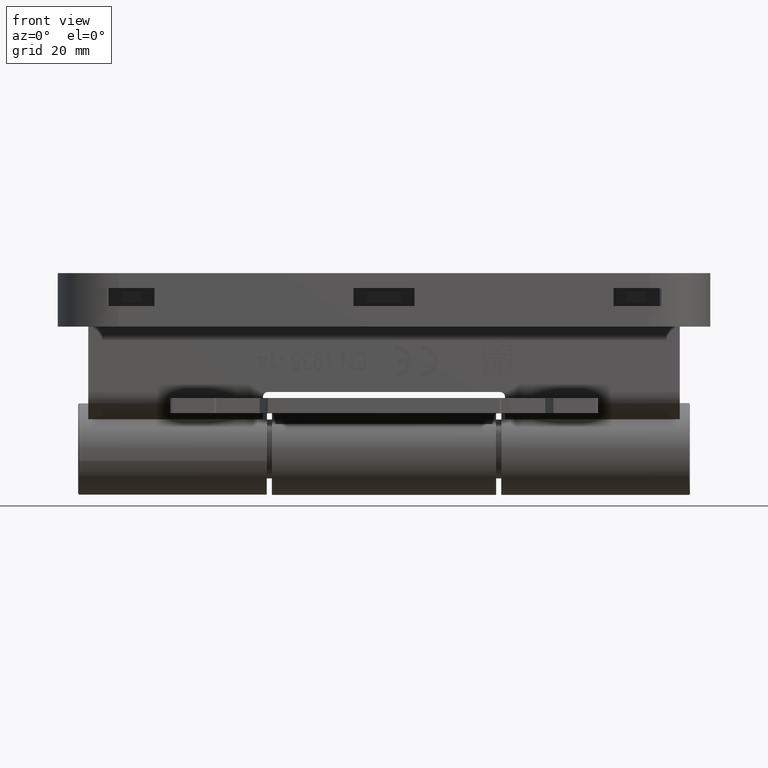
[diagram: clean part render]
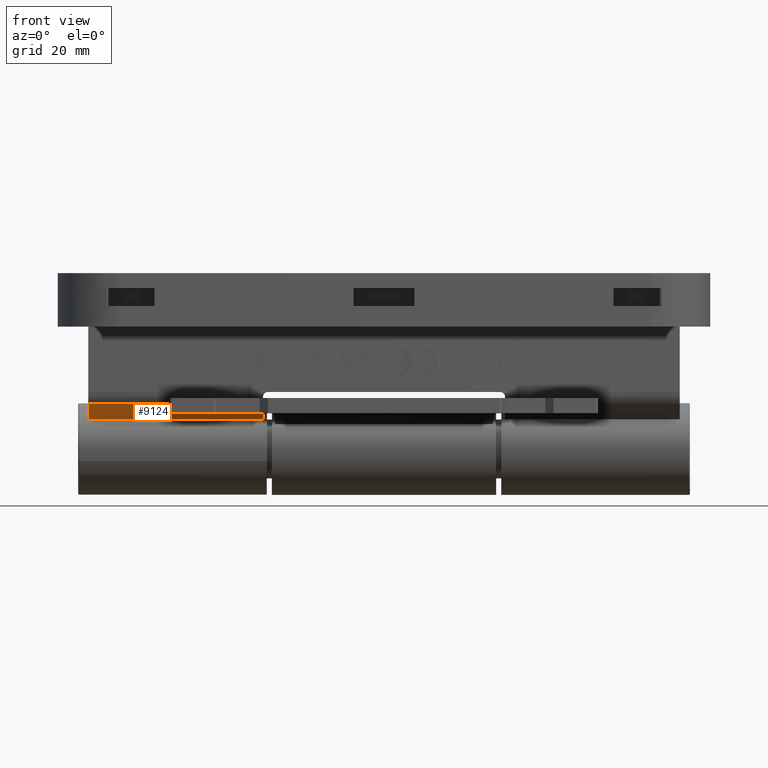
[diagram: same view with one face highlighted and labeled with its STEP entity id]
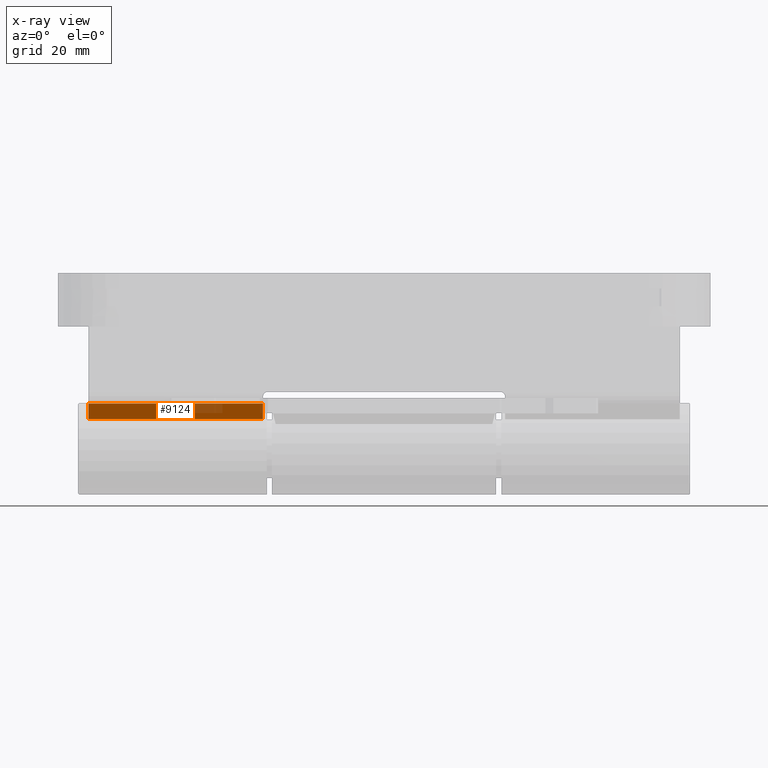
[diagram: x-ray of the same camera — body ghosted, the highlighted face saturated]
A machine part, front view. The second image highlights one B-rep face of the part: STEP entity #9124.
The next image is the same camera in x-ray: the body ghosted, the highlighted face saturated — about 19% of this face is hidden behind the body in this view.
In plain terms, the highlighted planar face has unit normal (0, 0.7575, 0.6528).
Its self-contained STEP definition (entity closure, byte-faithful):
#509 = VERTEX_POINT ( 'NONE', #15197 ) ;
#1026 = EDGE_LOOP ( 'NONE', ( #24645, #42926, #46314, #42566 ) ) ;
#2307 = LINE ( 'NONE', #34028, #2556 ) ;
#2556 = VECTOR ( 'NONE', #34277, 1000.000000000000000 ) ;
#9124 = ADVANCED_FACE ( 'NONE', ( #9517 ), #44605, .F. ) ;
#9517 = FACE_OUTER_BOUND ( 'NONE', #1026, .T. ) ;
#9781 = CARTESIAN_POINT ( 'NONE',  ( -27.72750935782417869, 63.99999999999997158, 25.45851634693802978 ) ) ;
#9970 = AXIS2_PLACEMENT_3D ( 'NONE', #9781, #20436, #28761 ) ;
#11502 = CARTESIAN_POINT ( 'NONE',  ( -30.48820563809798401, 57.99999999999997868, 28.66178624694167354 ) ) ;
#13612 = CARTESIAN_POINT ( 'NONE',  ( -27.84876091746155424, 57.99999999999997868, 25.59920602515079224 ) ) ;
#15058 = LINE ( 'NONE', #26505, #45182 ) ;
#15197 = CARTESIAN_POINT ( 'NONE',  ( -27.84876091746157556, 23.74999999999997868, 25.59920602515079224 ) ) ;
#20436 = DIRECTION ( 'NONE',  ( -0.7574968807252608904, -5.045942868377556070E-16, -0.6528387823126776679 ) ) ;
#21544 = LINE ( 'NONE', #32721, #37565 ) ;
#21868 = LINE ( 'NONE', #39184, #39311 ) ;
#22690 = EDGE_CURVE ( 'NONE', #29648, #42429, #21544, .T. ) ;
#24066 = EDGE_CURVE ( 'NONE', #509, #42429, #21868, .T. ) ;
#24645 = ORIENTED_EDGE ( 'NONE', *, *, #38192, .F. ) ;
#26505 = CARTESIAN_POINT ( 'NONE',  ( -27.72750935782419290, 57.99999999999997868, 25.45851634693803334 ) ) ;
#27009 = DIRECTION ( 'NONE',  ( -0.6528387823126776679, 6.119432418768942011E-16, 0.7574968807252608904 ) ) ;
#28761 = DIRECTION ( 'NONE',  ( -0.6528387823126776679, -4.348779884950725436E-16, 0.7574968807252608904 ) ) ;
#29079 = VERTEX_POINT ( 'NONE', #13612 ) ;
#29648 = VERTEX_POINT ( 'NONE', #11502 ) ;
#30999 = CARTESIAN_POINT ( 'NONE',  ( -30.48820563809800532, 23.74999999999997513, 28.66178624694167354 ) ) ;
#32721 = CARTESIAN_POINT ( 'NONE',  ( -30.48820563809796269, 63.99999999999995737, 28.66178624694167354 ) ) ;
#34028 = CARTESIAN_POINT ( 'NONE',  ( -27.84876091746154714, 63.99999999999997158, 25.59920602515079224 ) ) ;
#34277 = DIRECTION ( 'NONE',  ( -6.661338147750984602E-16, -1.000000000000000000, -1.295404630198729585E-30 ) ) ;
#37565 = VECTOR ( 'NONE', #45435, 1000.000000000000000 ) ;
#37708 = DIRECTION ( 'NONE',  ( -0.6528387823126776679, -4.348779884950725436E-16, 0.7574968807252608904 ) ) ;
#38192 = EDGE_CURVE ( 'NONE', #29079, #509, #2307, .T. ) ;
#39184 = CARTESIAN_POINT ( 'NONE',  ( -27.72750935782420711, 23.74999999999997868, 25.45851634693802978 ) ) ;
#39311 = VECTOR ( 'NONE', #37708, 1000.000000000000000 ) ;
#42429 = VERTEX_POINT ( 'NONE', #30999 ) ;
#42566 = ORIENTED_EDGE ( 'NONE', *, *, #24066, .F. ) ;
#42926 = ORIENTED_EDGE ( 'NONE', *, *, #45028, .T. ) ;
#44605 = PLANE ( 'NONE',  #9970 ) ;
#45028 = EDGE_CURVE ( 'NONE', #29079, #29648, #15058, .T. ) ;
#45182 = VECTOR ( 'NONE', #27009, 1000.000000000000000 ) ;
#45435 = DIRECTION ( 'NONE',  ( -6.661338147750984602E-16, -1.000000000000000000, -1.295404630198729585E-30 ) ) ;
#46314 = ORIENTED_EDGE ( 'NONE', *, *, #22690, .T. ) ;